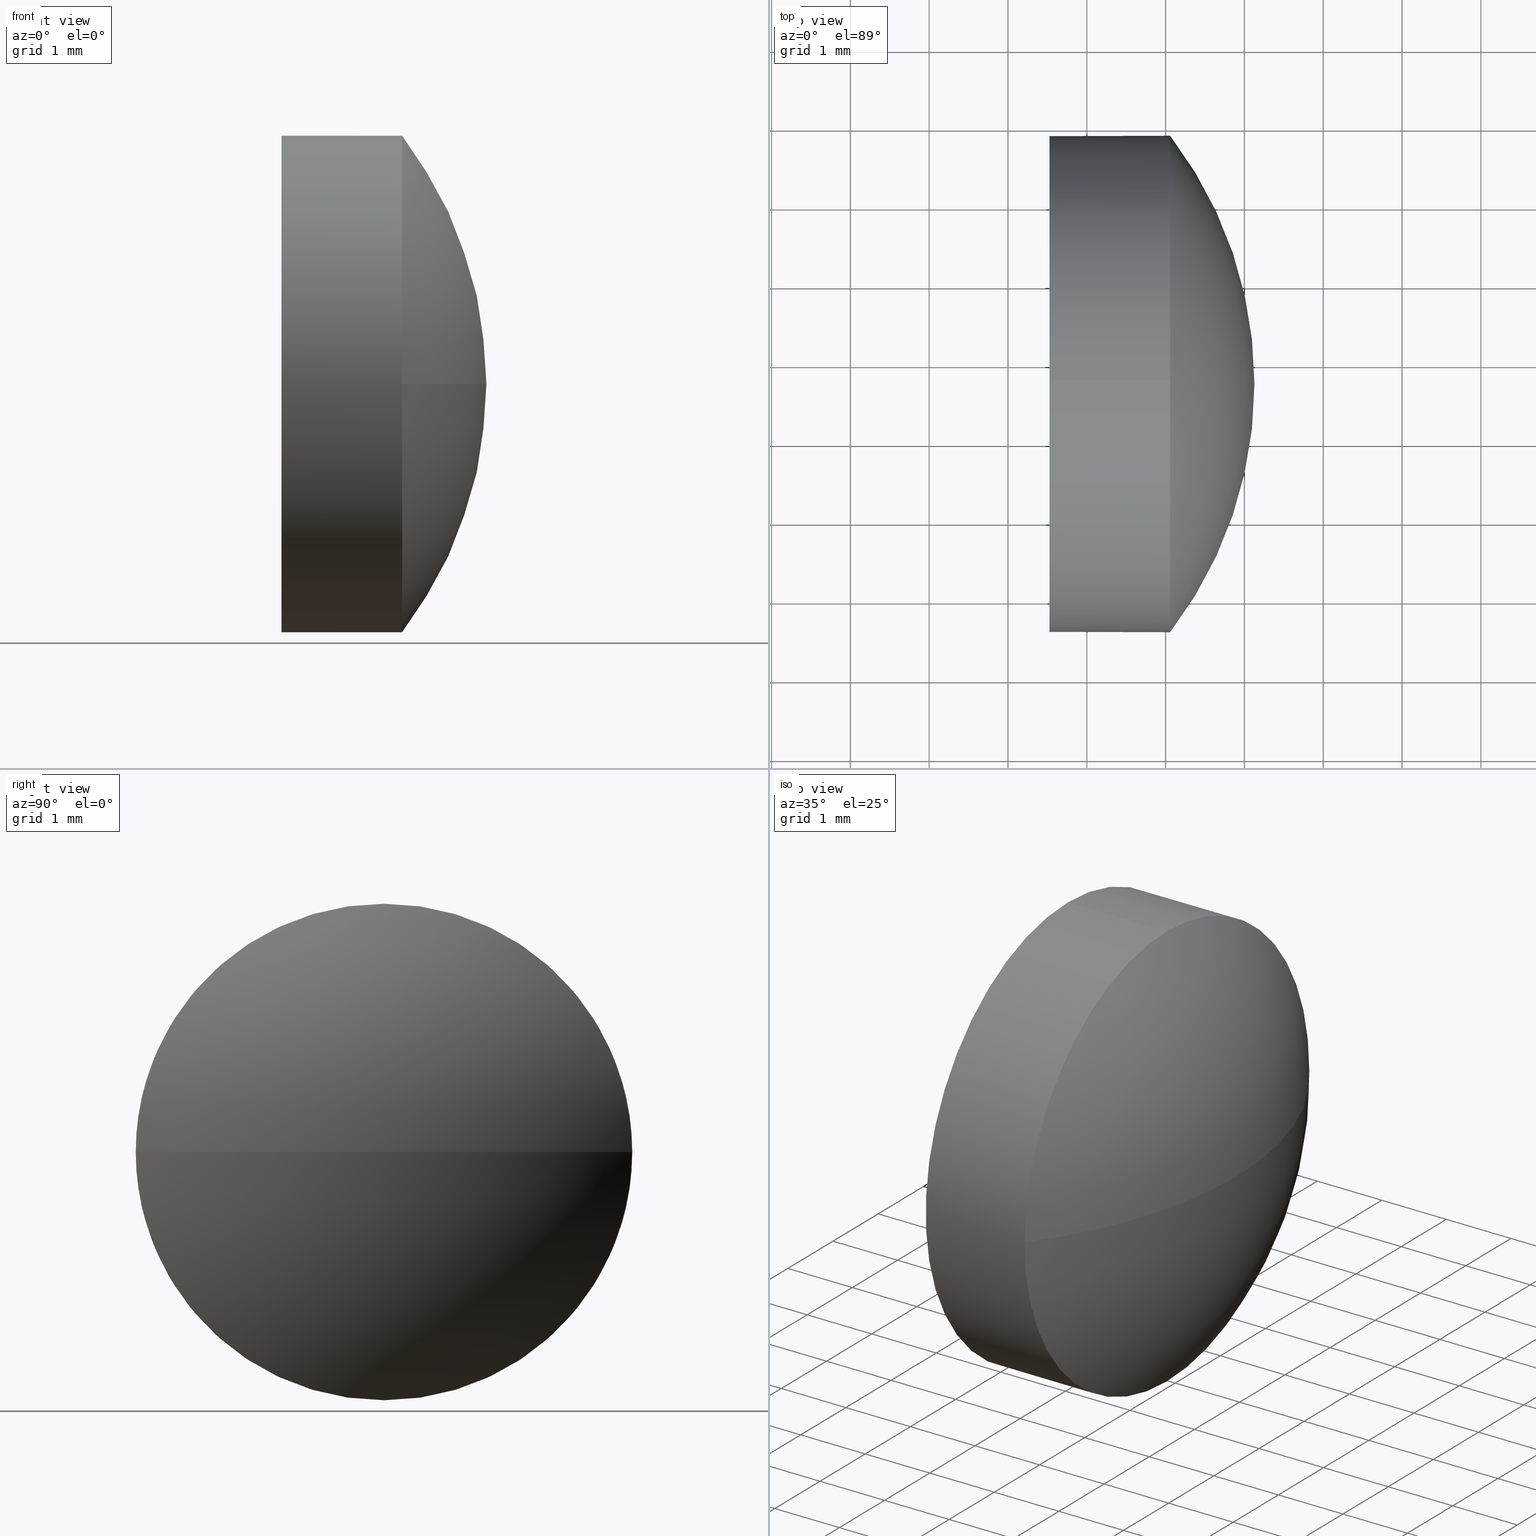
[diagram: canonical four-view strip — front | top / right | iso, engineering-drawing reading convention]
A machine part, canonical four-view strip (front | top / right | iso — engineering-drawing reading convention). The complete STEP part file that produces these views, byte-faithful:
ISO-10303-21;
HEADER;
FILE_DESCRIPTION (( 'STEP AP214' ),
    '1' );
FILE_NAME ('100179.STEP',
    '2019-05-21T02:10:13',
    ( '' ),
    ( '' ),
    'SwSTEP 2.0',
    'SolidWorks 2016',
    '' );
FILE_SCHEMA (( 'AUTOMOTIVE_DESIGN' ));
ENDSEC;

DATA;
#1 = APPLICATION_PROTOCOL_DEFINITION ( 'draft international standard', 'automotive_design', 1998, #67 ) ;
#2 = DIRECTION ( 'NONE',  ( -1.000000000000000000, -0.0000000000000000000, -0.0000000000000000000 ) ) ;
#3 = VERTEX_POINT ( 'NONE', #169 ) ;
#4 = ORIENTED_EDGE ( 'NONE', *, *, #186, .F. ) ;
#5 = UNCERTAINTY_MEASURE_WITH_UNIT (LENGTH_MEASURE( 1.000000000000000100E-005 ), #23, 'distance_accuracy_value', 'NONE');
#6 = CIRCLE ( 'NONE', #147, 5.171682242990693900 ) ;
#7 = AXIS2_PLACEMENT_3D ( 'NONE', #24, #161, #156 ) ;
#8 = DIRECTION ( 'NONE',  ( 1.000000000000000000, 0.0000000000000000000, 0.0000000000000000000 ) ) ;
#9 = ORIENTED_EDGE ( 'NONE', *, *, #52, .F. ) ;
#10 = CARTESIAN_POINT ( 'NONE',  ( 408.9557073353928400, -154.2646771104562900, 0.0000000000000000000 ) ) ;
#11 = CARTESIAN_POINT ( 'NONE',  ( 411.5273895783834600, -154.2646771104562600, 3.150000000000013700 ) ) ;
#12 = CARTESIAN_POINT ( 'NONE',  ( 413.0573895783834900, -154.2646771104562600, 0.0000000000000000000 ) ) ;
#13 =( NAMED_UNIT ( * ) PLANE_ANGLE_UNIT ( ) SI_UNIT ( $, .RADIAN. ) );
#14 = EDGE_CURVE ( 'NONE', #183, #115, #87, .T. ) ;
#15 = PRODUCT ( '100179', '100179', '', ( #159 ) ) ;
#16 = ORIENTED_EDGE ( 'NONE', *, *, #181, .T. ) ;
#17 = PRODUCT_RELATED_PRODUCT_CATEGORY ( 'part', '', ( #15 ) ) ;
#18 = EDGE_CURVE ( 'NONE', #48, #3, #41, .T. ) ;
#19 = PRODUCT_DEFINITION_SHAPE ( 'NONE', 'NONE',  #154 ) ;
#20 = CIRCLE ( 'NONE', #28, 3.150000000000013700 ) ;
#21 = CARTESIAN_POINT ( 'NONE',  ( 413.0573895783834900, -154.2646771104562600, 0.0000000000000000000 ) ) ;
#22 =( GEOMETRIC_REPRESENTATION_CONTEXT ( 3 ) GLOBAL_UNCERTAINTY_ASSIGNED_CONTEXT ( ( #53 ) ) GLOBAL_UNIT_ASSIGNED_CONTEXT ( ( #158, #58, #44 ) ) REPRESENTATION_CONTEXT ( 'NONE', 'WORKASPACE' ) );
#23 =( LENGTH_UNIT ( ) NAMED_UNIT ( * ) SI_UNIT ( .MILLI., .METRE. ) );
#24 = CARTESIAN_POINT ( 'NONE',  ( 413.0573895783834900, -154.2646771104562600, 0.0000000000000000000 ) ) ;
#25 = DIRECTION ( 'NONE',  ( 0.0000000000000000000, 0.0000000000000000000, 1.000000000000000000 ) ) ;
#26 = DIRECTION ( 'NONE',  ( -1.000000000000000000, -0.0000000000000000000, -0.0000000000000000000 ) ) ;
#27 = EDGE_LOOP ( 'NONE', ( #64, #98, #177, #83 ) ) ;
#28 = AXIS2_PLACEMENT_3D ( 'NONE', #21, #2, #185 ) ;
#29 = VERTEX_POINT ( 'NONE', #54 ) ;
#30 = ADVANCED_FACE ( 'NONE', ( #62 ), #150, .T. ) ;
#31 = VERTEX_POINT ( 'NONE', #38 ) ;
#32 = VECTOR ( 'NONE', #26, 1000.000000000000000 ) ;
#33 = LINE ( 'NONE', #136, #145 ) ;
#34 = ADVANCED_FACE ( 'NONE', ( #68 ), #155, .F. ) ;
#35 = FILL_AREA_STYLE_COLOUR ( '', #96 ) ;
#36 = MECHANICAL_DESIGN_GEOMETRIC_PRESENTATION_REPRESENTATION (  '', ( #63 ), #22 ) ;
#37 = ORIENTED_EDGE ( 'NONE', *, *, #18, .F. ) ;
#38 = CARTESIAN_POINT ( 'NONE',  ( 413.0573895783834900, -154.2646771104562600, 3.150000000000013700 ) ) ;
#39 = DIRECTION ( 'NONE',  ( 1.000000000000000000, 0.0000000000000000000, 0.0000000000000000000 ) ) ;
#40 = SURFACE_STYLE_USAGE ( .BOTH. , #93 ) ;
#41 = CIRCLE ( 'NONE', #61, 3.150000000000013700 ) ;
#42 = DIRECTION ( 'NONE',  ( 0.0000000000000000000, 1.000000000000000000, 0.0000000000000000000 ) ) ;
#43 = PRODUCT_DEFINITION_FORMATION_WITH_SPECIFIED_SOURCE ( '�κ�', '', #15, .NOT_KNOWN. ) ;
#44 =( NAMED_UNIT ( * ) SI_UNIT ( $, .STERADIAN. ) SOLID_ANGLE_UNIT ( ) );
#45 = CIRCLE ( 'NONE', #7, 3.150000000000013700 ) ;
#46 = ORIENTED_EDGE ( 'NONE', *, *, #174, .T. ) ;
#47 = CIRCLE ( 'NONE', #95, 3.150000000000013700 ) ;
#48 = VERTEX_POINT ( 'NONE', #11 ) ;
#49 = AXIS2_PLACEMENT_3D ( 'NONE', #127, #109, #141 ) ;
#50 = FACE_OUTER_BOUND ( 'NONE', #65, .T. ) ;
#51 = SURFACE_SIDE_STYLE ('',( #110 ) ) ;
#52 = EDGE_CURVE ( 'NONE', #31, #48, #33, .T. ) ;
#53 = UNCERTAINTY_MEASURE_WITH_UNIT (LENGTH_MEASURE( 1.000000000000000100E-005 ), #158, 'distance_accuracy_value', 'NONE');
#54 = CARTESIAN_POINT ( 'NONE',  ( 413.0573895783834900, -154.2646771104562600, -3.150000000000013700 ) ) ;
#55 = SURFACE_STYLE_USAGE ( .BOTH. , #51 ) ;
#56 = SPHERICAL_SURFACE ( 'NONE', #135, 5.171682242990696600 ) ;
#57 = CARTESIAN_POINT ( 'NONE',  ( 410.7216791658415800, -154.2646771104562600, 0.0000000000000000000 ) ) ;
#58 =( NAMED_UNIT ( * ) PLANE_ANGLE_UNIT ( ) SI_UNIT ( $, .RADIAN. ) );
#59 = APPLICATION_PROTOCOL_DEFINITION ( 'draft international standard', 'automotive_design', 1998, #92 ) ;
#60 = AXIS2_PLACEMENT_3D ( 'NONE', #128, #140, #82 ) ;
#61 = AXIS2_PLACEMENT_3D ( 'NONE', #76, #184, #134 ) ;
#62 = FACE_OUTER_BOUND ( 'NONE', #27, .T. ) ;
#63 = STYLED_ITEM ( 'NONE', ( #114 ), #118 ) ;
#64 = ORIENTED_EDGE ( 'NONE', *, *, #14, .F. ) ;
#65 = EDGE_LOOP ( 'NONE', ( #89, #103, #168, #4 ) ) ;
#66 = CARTESIAN_POINT ( 'NONE',  ( 414.1273895783835400, -154.2646771104562900, 0.0000000000000000000 ) ) ;
#67 = APPLICATION_CONTEXT ( 'automotive_design' ) ;
#68 = FACE_OUTER_BOUND ( 'NONE', #131, .T. ) ;
#69 = CARTESIAN_POINT ( 'NONE',  ( 410.7216791658415800, -154.2646771104562600, 0.0000000000000000000 ) ) ;
#70 = STYLED_ITEM ( 'NONE', ( #180 ), #81 ) ;
#71 = DIRECTION ( 'NONE',  ( -1.000000000000000000, -0.0000000000000000000, -0.0000000000000000000 ) ) ;
#72 = ORIENTED_EDGE ( 'NONE', *, *, #181, .F. ) ;
#73 = ORIENTED_EDGE ( 'NONE', *, *, #164, .T. ) ;
#74 = PRESENTATION_LAYER_ASSIGNMENT (  '', '', ( #70 ) ) ;
#75 = CIRCLE ( 'NONE', #60, 3.150000000000013700 ) ;
#76 = CARTESIAN_POINT ( 'NONE',  ( 411.5273895783834600, -154.2646771104562600, 0.0000000000000000000 ) ) ;
#77 = DIRECTION ( 'NONE',  ( 0.0000000000000000000, 1.000000000000000000, 0.0000000000000000000 ) ) ;
#78 = FILL_AREA_STYLE ('',( #112 ) ) ;
#79 =( NAMED_UNIT ( * ) SI_UNIT ( $, .STERADIAN. ) SOLID_ANGLE_UNIT ( ) );
#80 = CYLINDRICAL_SURFACE ( 'NONE', #163, 3.150000000000013700 ) ;
#81 = MANIFOLD_SOLID_BREP ( '��ת1', #153 ) ;
#82 = DIRECTION ( 'NONE',  ( 0.0000000000000000000, 0.0000000000000000000, 1.000000000000000000 ) ) ;
#83 = ORIENTED_EDGE ( 'NONE', *, *, #121, .F. ) ;
#84 = SURFACE_STYLE_FILL_AREA ( #78 ) ;
#85 =( GEOMETRIC_REPRESENTATION_CONTEXT ( 3 ) GLOBAL_UNCERTAINTY_ASSIGNED_CONTEXT ( ( #5 ) ) GLOBAL_UNIT_ASSIGNED_CONTEXT ( ( #23, #122, #151 ) ) REPRESENTATION_CONTEXT ( 'NONE', 'WORKASPACE' ) );
#86 = FACE_OUTER_BOUND ( 'NONE', #143, .T. ) ;
#87 = CIRCLE ( 'NONE', #130, 5.171682242990693900 ) ;
#88 = CARTESIAN_POINT ( 'NONE',  ( 411.5273895783834600, -154.2646771104562600, 0.0000000000000000000 ) ) ;
#89 = ORIENTED_EDGE ( 'NONE', *, *, #152, .F. ) ;
#90 = DIRECTION ( 'NONE',  ( 0.0000000000000000000, 0.0000000000000000000, -1.000000000000000000 ) ) ;
#91 = CARTESIAN_POINT ( 'NONE',  ( 410.7216791658415800, -154.2646771104562600, -3.150000000000013700 ) ) ;
#92 = APPLICATION_CONTEXT ( 'automotive_design' ) ;
#93 = SURFACE_SIDE_STYLE ('',( #84 ) ) ;
#94 = CARTESIAN_POINT ( 'NONE',  ( 408.9557073353928400, -154.2646771104562900, 0.0000000000000000000 ) ) ;
#95 = AXIS2_PLACEMENT_3D ( 'NONE', #12, #139, #107 ) ;
#96 = COLOUR_RGB ( '',1.000000000000000000, 1.000000000000000000, 1.000000000000000000 ) ;
#97 = CIRCLE ( 'NONE', #49, 3.150000000000013700 ) ;
#98 = ORIENTED_EDGE ( 'NONE', *, *, #152, .T. ) ;
#99 = ORIENTED_EDGE ( 'NONE', *, *, #52, .T. ) ;
#100 = VERTEX_POINT ( 'NONE', #166 ) ;
#101 = CARTESIAN_POINT ( 'NONE',  ( 408.9557073353928400, -154.2646771104562900, 0.0000000000000000000 ) ) ;
#102 = AXIS2_PLACEMENT_3D ( 'NONE', #101, #104, #77 ) ;
#103 = ORIENTED_EDGE ( 'NONE', *, *, #14, .T. ) ;
#104 = DIRECTION ( 'NONE',  ( -0.0000000000000000000, 0.0000000000000000000, -1.000000000000000000 ) ) ;
#105 = UNCERTAINTY_MEASURE_WITH_UNIT (LENGTH_MEASURE( 1.000000000000000100E-005 ), #126, 'distance_accuracy_value', 'NONE');
#106 = DIRECTION ( 'NONE',  ( -0.0000000000000000000, 0.0000000000000000000, 1.000000000000000000 ) ) ;
#107 = DIRECTION ( 'NONE',  ( 0.0000000000000000000, 0.0000000000000000000, 1.000000000000000000 ) ) ;
#108 = SHAPE_DEFINITION_REPRESENTATION ( #19, #118 ) ;
#109 = DIRECTION ( 'NONE',  ( -1.000000000000000000, -0.0000000000000000000, -0.0000000000000000000 ) ) ;
#110 = SURFACE_STYLE_FILL_AREA ( #138 ) ;
#111 = DIRECTION ( 'NONE',  ( 0.0000000000000000000, 0.0000000000000000000, 1.000000000000000000 ) ) ;
#112 = FILL_AREA_STYLE_COLOUR ( '', #157 ) ;
#113 = DIRECTION ( 'NONE',  ( 0.0000000000000000000, 1.000000000000000000, 1.224646799147353900E-016 ) ) ;
#114 = PRESENTATION_STYLE_ASSIGNMENT (( #40 ) ) ;
#115 = VERTEX_POINT ( 'NONE', #182 ) ;
#116 = EDGE_CURVE ( 'NONE', #31, #115, #20, .T. ) ;
#117 = PRODUCT_DEFINITION_CONTEXT ( 'detailed design', #67, 'design' ) ;
#118 = ADVANCED_BREP_SHAPE_REPRESENTATION ( '100179', ( #81, #142 ), #146 ) ;
#119 = AXIS2_PLACEMENT_3D ( 'NONE', #57, #175, #111 ) ;
#120 = ORIENTED_EDGE ( 'NONE', *, *, #18, .T. ) ;
#121 = EDGE_CURVE ( 'NONE', #115, #29, #97, .T. ) ;
#122 =( NAMED_UNIT ( * ) PLANE_ANGLE_UNIT ( ) SI_UNIT ( $, .RADIAN. ) );
#123 = ORIENTED_EDGE ( 'NONE', *, *, #116, .T. ) ;
#124 = DIRECTION ( 'NONE',  ( -1.000000000000000000, -0.0000000000000000000, -0.0000000000000000000 ) ) ;
#125 = AXIS2_PLACEMENT_3D ( 'NONE', #88, #8, #90 ) ;
#126 =( LENGTH_UNIT ( ) NAMED_UNIT ( * ) SI_UNIT ( .MILLI., .METRE. ) );
#127 = CARTESIAN_POINT ( 'NONE',  ( 413.0573895783834900, -154.2646771104562600, 0.0000000000000000000 ) ) ;
#128 = CARTESIAN_POINT ( 'NONE',  ( 411.5273895783834600, -154.2646771104562600, 0.0000000000000000000 ) ) ;
#129 = PRESENTATION_LAYER_ASSIGNMENT (  '', '', ( #63 ) ) ;
#130 = AXIS2_PLACEMENT_3D ( 'NONE', #10, #106, #170 ) ;
#131 = EDGE_LOOP ( 'NONE', ( #120, #16 ) ) ;
#132 = ADVANCED_FACE ( 'NONE', ( #133 ), #167, .T. ) ;
#133 = FACE_OUTER_BOUND ( 'NONE', #179, .T. ) ;
#134 = DIRECTION ( 'NONE',  ( 0.0000000000000000000, 0.0000000000000000000, 1.000000000000000000 ) ) ;
#135 = AXIS2_PLACEMENT_3D ( 'NONE', #94, #173, #42 ) ;
#136 = CARTESIAN_POINT ( 'NONE',  ( 410.7216791658415800, -154.2646771104562600, 3.150000000000013700 ) ) ;
#137 = ORIENTED_EDGE ( 'NONE', *, *, #164, .F. ) ;
#138 = FILL_AREA_STYLE ('',( #35 ) ) ;
#139 = DIRECTION ( 'NONE',  ( -1.000000000000000000, -0.0000000000000000000, -0.0000000000000000000 ) ) ;
#140 = DIRECTION ( 'NONE',  ( -1.000000000000000000, -0.0000000000000000000, -0.0000000000000000000 ) ) ;
#141 = DIRECTION ( 'NONE',  ( 0.0000000000000000000, 0.0000000000000000000, 1.000000000000000000 ) ) ;
#142 = AXIS2_PLACEMENT_3D ( 'NONE', #172, #171, #39 ) ;
#143 = EDGE_LOOP ( 'NONE', ( #162, #73, #37, #9, #123 ) ) ;
#144 = MECHANICAL_DESIGN_GEOMETRIC_PRESENTATION_REPRESENTATION (  '', ( #70 ), #85 ) ;
#145 = VECTOR ( 'NONE', #124, 1000.000000000000000 ) ;
#146 =( GEOMETRIC_REPRESENTATION_CONTEXT ( 3 ) GLOBAL_UNCERTAINTY_ASSIGNED_CONTEXT ( ( #105 ) ) GLOBAL_UNIT_ASSIGNED_CONTEXT ( ( #126, #13, #79 ) ) REPRESENTATION_CONTEXT ( 'NONE', 'WORKASPACE' ) );
#147 = AXIS2_PLACEMENT_3D ( 'NONE', #160, #176, #113 ) ;
#148 = ADVANCED_FACE ( 'NONE', ( #50 ), #56, .T. ) ;
#149 = ADVANCED_FACE ( 'NONE', ( #86 ), #80, .T. ) ;
#150 = SPHERICAL_SURFACE ( 'NONE', #102, 5.171682242990696600 ) ;
#151 =( NAMED_UNIT ( * ) SI_UNIT ( $, .STERADIAN. ) SOLID_ANGLE_UNIT ( ) );
#152 = EDGE_CURVE ( 'NONE', #183, #100, #6, .T. ) ;
#153 = CLOSED_SHELL ( 'NONE', ( #149, #30, #148, #132, #34 ) ) ;
#154 = PRODUCT_DEFINITION ( 'δ֪', '', #43, #117 ) ;
#155 = PLANE ( 'NONE',  #125 ) ;
#156 = DIRECTION ( 'NONE',  ( 0.0000000000000000000, 0.0000000000000000000, 1.000000000000000000 ) ) ;
#157 = COLOUR_RGB ( '',1.000000000000000000, 1.000000000000000000, 1.000000000000000000 ) ;
#158 =( LENGTH_UNIT ( ) NAMED_UNIT ( * ) SI_UNIT ( .MILLI., .METRE. ) );
#159 = PRODUCT_CONTEXT ( 'NONE', #92, 'mechanical' ) ;
#160 = CARTESIAN_POINT ( 'NONE',  ( 408.9557073353928400, -154.2646771104562900, 0.0000000000000000000 ) ) ;
#161 = DIRECTION ( 'NONE',  ( -1.000000000000000000, -0.0000000000000000000, -0.0000000000000000000 ) ) ;
#162 = ORIENTED_EDGE ( 'NONE', *, *, #121, .T. ) ;
#163 = AXIS2_PLACEMENT_3D ( 'NONE', #69, #71, #25 ) ;
#164 = EDGE_CURVE ( 'NONE', #29, #3, #165, .T. ) ;
#165 = LINE ( 'NONE', #91, #32 ) ;
#166 = CARTESIAN_POINT ( 'NONE',  ( 413.0573895783834900, -157.4146771104563200, -3.857637417314178500E-016 ) ) ;
#167 = CYLINDRICAL_SURFACE ( 'NONE', #119, 3.150000000000013700 ) ;
#168 = ORIENTED_EDGE ( 'NONE', *, *, #116, .F. ) ;
#169 = CARTESIAN_POINT ( 'NONE',  ( 411.5273895783834600, -154.2646771104562600, -3.150000000000013700 ) ) ;
#170 = DIRECTION ( 'NONE',  ( 1.000000000000000000, 0.0000000000000000000, 0.0000000000000000000 ) ) ;
#171 = DIRECTION ( 'NONE',  ( 0.0000000000000000000, 0.0000000000000000000, 1.000000000000000000 ) ) ;
#172 = CARTESIAN_POINT ( 'NONE',  ( 0.0000000000000000000, 0.0000000000000000000, 0.0000000000000000000 ) ) ;
#173 = DIRECTION ( 'NONE',  ( -0.0000000000000000000, 0.0000000000000000000, -1.000000000000000000 ) ) ;
#174 = EDGE_CURVE ( 'NONE', #29, #100, #47, .T. ) ;
#175 = DIRECTION ( 'NONE',  ( -1.000000000000000000, -0.0000000000000000000, -0.0000000000000000000 ) ) ;
#176 = DIRECTION ( 'NONE',  ( 0.0000000000000000000, 1.224646799147353200E-016, -1.000000000000000000 ) ) ;
#177 = ORIENTED_EDGE ( 'NONE', *, *, #174, .F. ) ;
#178 = ORIENTED_EDGE ( 'NONE', *, *, #186, .T. ) ;
#179 = EDGE_LOOP ( 'NONE', ( #137, #46, #178, #99, #72 ) ) ;
#180 = PRESENTATION_STYLE_ASSIGNMENT (( #55 ) ) ;
#181 = EDGE_CURVE ( 'NONE', #3, #48, #75, .T. ) ;
#182 = CARTESIAN_POINT ( 'NONE',  ( 413.0573895783834900, -151.1146771104562600, 0.0000000000000000000 ) ) ;
#183 = VERTEX_POINT ( 'NONE', #66 ) ;
#184 = DIRECTION ( 'NONE',  ( -1.000000000000000000, -0.0000000000000000000, -0.0000000000000000000 ) ) ;
#185 = DIRECTION ( 'NONE',  ( 0.0000000000000000000, 0.0000000000000000000, 1.000000000000000000 ) ) ;
#186 = EDGE_CURVE ( 'NONE', #100, #31, #45, .T. ) ;
ENDSEC;
END-ISO-10303-21;
